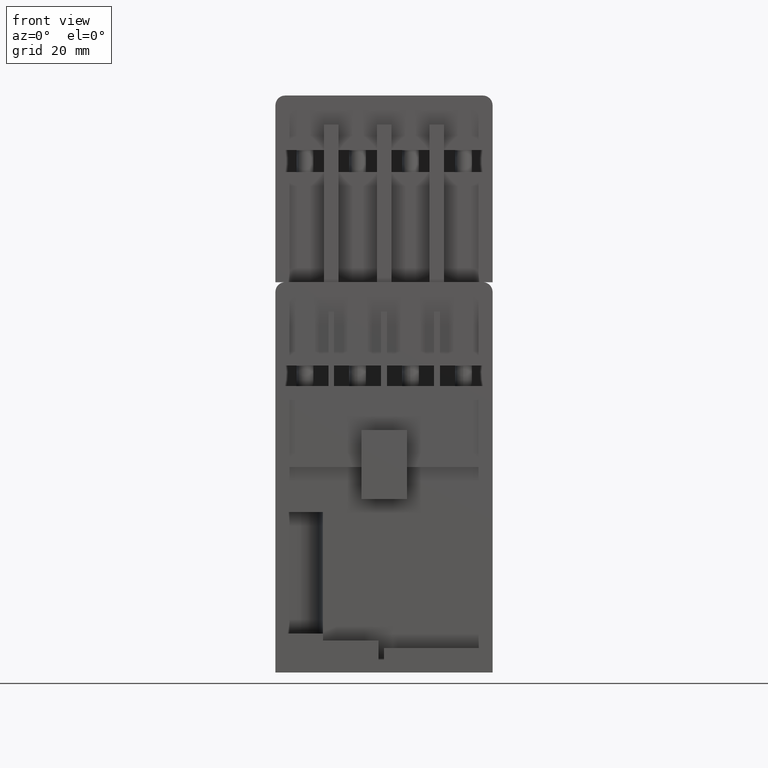
[diagram: clean part render]
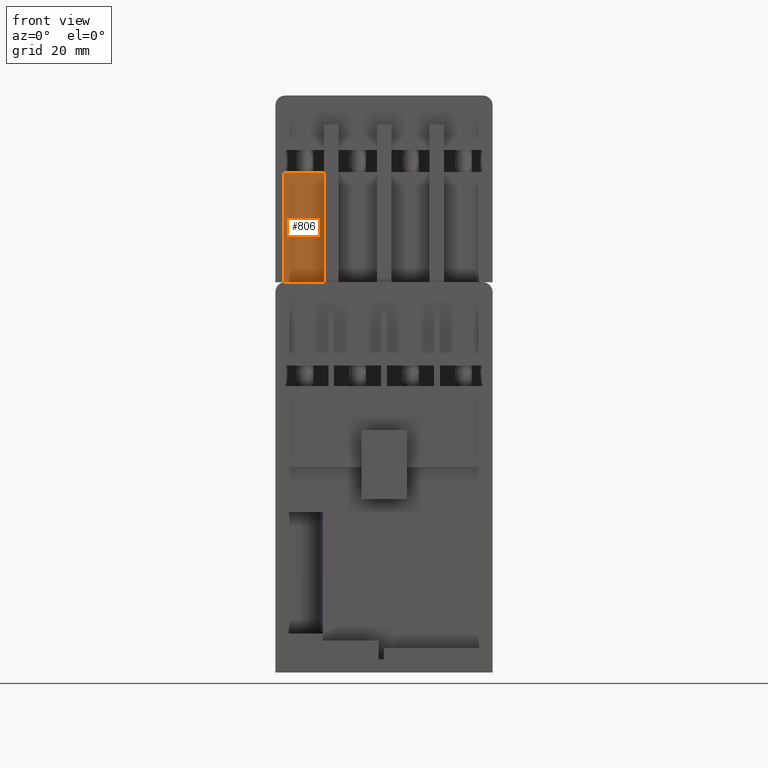
[diagram: same view with one face highlighted and labeled with its STEP entity id]
A machine part, front view. The second image highlights one B-rep face of the part: STEP entity #806.
In plain terms, the highlighted planar face has unit normal (0, 1, 0).
Its self-contained STEP definition (entity closure, byte-faithful):
#806=ADVANCED_FACE('',(#1901),#1385,.F.);
#1385=PLANE('',#12299);
#1901=FACE_OUTER_BOUND('',#2574,.T.);
#2574=EDGE_LOOP('',(#5215,#5216,#5217,#5218,#5219,#5220,#5221));
#5215=ORIENTED_EDGE('',*,*,#8549,.T.);
#5216=ORIENTED_EDGE('',*,*,#8550,.T.);
#5217=ORIENTED_EDGE('',*,*,#8551,.F.);
#5218=ORIENTED_EDGE('',*,*,#8424,.T.);
#5219=ORIENTED_EDGE('',*,*,#7439,.T.);
#5220=ORIENTED_EDGE('',*,*,#8437,.T.);
#5221=ORIENTED_EDGE('',*,*,#7461,.T.);
#6345=VERTEX_POINT('',#15750);
#6346=VERTEX_POINT('',#15751);
#6367=VERTEX_POINT('',#15793);
#6368=VERTEX_POINT('',#15795);
#7012=VERTEX_POINT('',#17766);
#7127=VERTEX_POINT('',#18025);
#7128=VERTEX_POINT('',#18027);
#7439=EDGE_CURVE('',#6345,#6346,#9044,.T.);
#7461=EDGE_CURVE('',#6368,#6367,#9063,.T.);
#8424=EDGE_CURVE('',#7012,#6345,#9883,.T.);
#8437=EDGE_CURVE('',#6346,#6368,#9896,.T.);
#8549=EDGE_CURVE('',#6367,#7127,#9970,.T.);
#8550=EDGE_CURVE('',#7127,#7128,#9971,.T.);
#8551=EDGE_CURVE('',#7012,#7128,#9972,.T.);
#9044=LINE('',#15749,#10395);
#9063=LINE('',#15794,#10414);
#9883=LINE('',#17765,#11234);
#9896=LINE('',#17791,#11247);
#9970=LINE('',#18024,#11321);
#9971=LINE('',#18026,#11322);
#9972=LINE('',#18028,#11323);
#10395=VECTOR('',#12632,1.);
#10414=VECTOR('',#12657,1.);
#11234=VECTOR('',#14491,1.);
#11247=VECTOR('',#14508,1.);
#11321=VECTOR('',#14692,1.);
#11322=VECTOR('',#14693,1.);
#11323=VECTOR('',#14694,1.);
#12299=AXIS2_PLACEMENT_3D('',#18029,#14695,#14696);
#12632=DIRECTION('',(1.,0.,0.));
#12657=DIRECTION('',(1.,0.,0.));
#14491=DIRECTION('',(1.,0.,0.));
#14508=DIRECTION('',(1.,0.,0.));
#14692=DIRECTION('',(0.,0.,1.));
#14693=DIRECTION('',(-1.,0.,0.));
#14694=DIRECTION('',(0.,0.,1.));
#14695=DIRECTION('',(0.,1.,0.));
#14696=DIRECTION('',(0.,0.,1.));
#15749=CARTESIAN_POINT('',(-12.4,-19.9,75.5000000000005));
#15750=CARTESIAN_POINT('',(-20.4,-19.9,75.5));
#15751=CARTESIAN_POINT('',(-19.15,-19.9,75.5));
#15793=CARTESIAN_POINT('',(-12.4,-19.8999999999999,75.5));
#15794=CARTESIAN_POINT('',(-12.4,-19.9,75.5000000000005));
#15795=CARTESIAN_POINT('',(-13.5500000000001,-19.9,75.5));
#17765=CARTESIAN_POINT('',(-12.4,-19.9,75.5000000000005));
#17766=CARTESIAN_POINT('',(-20.8,-19.9,75.5000000000006));
#17791=CARTESIAN_POINT('',(-12.4,-19.9,75.5000000000005));
#18024=CARTESIAN_POINT('',(-12.4,-19.8999999999999,72.25));
#18025=CARTESIAN_POINT('',(-12.4,-19.8999999999999,98.2));
#18026=CARTESIAN_POINT('',(-12.4,-19.9,98.2));
#18027=CARTESIAN_POINT('',(-20.8,-19.9,98.2));
#18028=CARTESIAN_POINT('',(-20.8,-19.9,72.25));
#18029=CARTESIAN_POINT('',(-22.4,-19.9,108.));